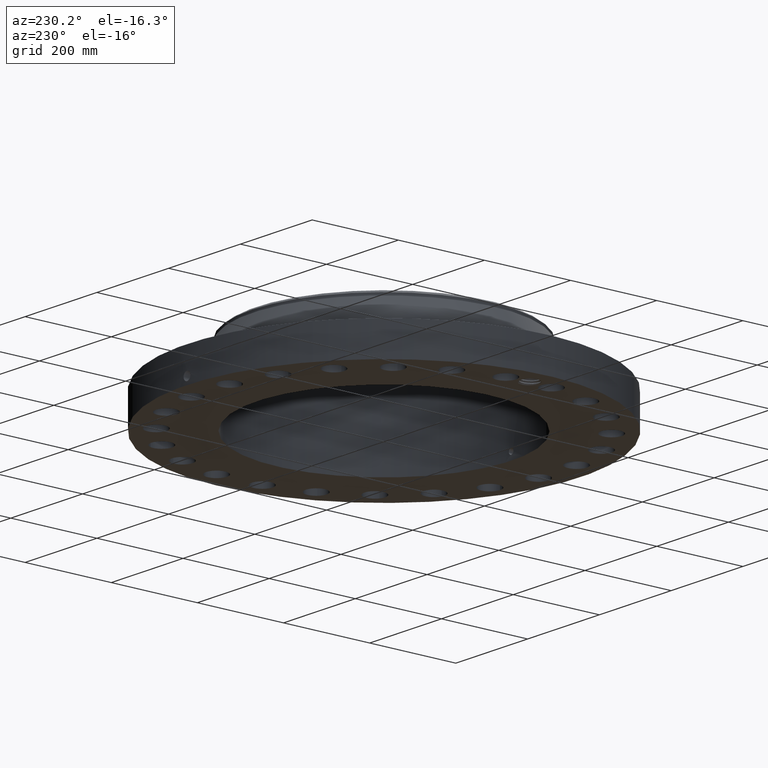
[diagram: clean part render]
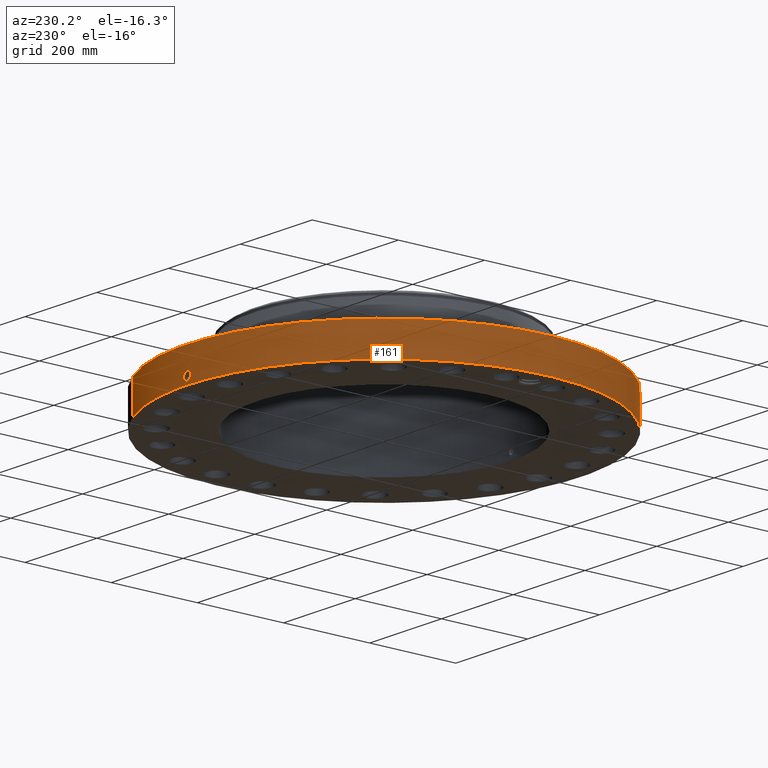
[diagram: same view with one face highlighted and labeled with its STEP entity id]
A machine part, auxiliary view. The second image highlights one B-rep face of the part: STEP entity #161.
In plain terms, the highlighted cylindrical surface (partial cylindrical patch) has radius 457.2 mm, axis along (0, 0, -1).
Its self-contained STEP definition (entity closure, byte-faithful):
#38=AXIS2_PLACEMENT_3D('Cylinder Axis2P3D',#35,#36,#37) ;
#42=AXIS2_PLACEMENT_3D('Circle Axis2P3D',#40,#41,$) ;
#58=AXIS2_PLACEMENT_3D('Circle Axis2P3D',#56,#57,$) ;
#35=CARTESIAN_POINT('Axis2P3D Location',(0.,0.,3.69000000001)) ;
#40=CARTESIAN_POINT('Axis2P3D Location',(0.,0.,0.250000000001)) ;
#44=CARTESIAN_POINT('Vertex',(-8.62965969491,-15.7964861141,0.250000000001)) ;
#46=CARTESIAN_POINT('Vertex',(8.62965969491,15.7964861141,0.250000000001)) ;
#49=CARTESIAN_POINT('Line Origine',(-8.62965969491,-15.7964861141,1.75000000001)) ;
#53=CARTESIAN_POINT('Vertex',(-8.62965969491,-15.7964861141,3.25000000001)) ;
#56=CARTESIAN_POINT('Axis2P3D Location',(0.,0.,3.25000000001)) ;
#60=CARTESIAN_POINT('Vertex',(8.62965969491,15.7964861141,3.25000000001)) ;
#63=CARTESIAN_POINT('Line Origine',(8.62965969491,15.7964861141,1.75000000001)) ;
#75=CARTESIAN_POINT('Control Point',(-0.000715916273797,17.9999999858,1.29411846164)) ;
#76=CARTESIAN_POINT('Control Point',(-0.0187947670169,17.9999992668,1.29408195945)) ;
#77=CARTESIAN_POINT('Control Point',(-0.0368704907879,17.9999710998,1.29265734614)) ;
#78=CARTESIAN_POINT('Control Point',(-0.054731662836,17.99991679,1.28986144223)) ;
#79=CARTESIAN_POINT('Vertex',(-0.000715617286584,17.9999999858,1.2941185108)) ;
#81=CARTESIAN_POINT('Vertex',(-0.054723070488,17.9999170677,1.28986280481)) ;
#85=CARTESIAN_POINT('Control Point',(-0.0547229766331,17.9999168164,1.28986226213)) ;
#86=CARTESIAN_POINT('Control Point',(-0.0953738332019,17.9997932305,1.28552531456)) ;
#87=CARTESIAN_POINT('Control Point',(-0.135409945992,17.9995285052,1.27380449254)) ;
#88=CARTESIAN_POINT('Control Point',(-0.172317078189,17.9991751707,1.25545477223)) ;
#89=CARTESIAN_POINT('Vertex',(-0.172317078189,17.9991751707,1.25545477223)) ;
#93=CARTESIAN_POINT('Control Point',(-0.0311785035352,17.9999729973,0.531201562891)) ;
#94=CARTESIAN_POINT('Control Point',(-0.0718024994835,17.9999026308,0.536338161164)) ;
#95=CARTESIAN_POINT('Control Point',(-0.111634499031,17.9997190308,0.546728855768)) ;
#96=CARTESIAN_POINT('Control Point',(-0.149741617249,17.9994324956,0.562218507289)) ;
#97=CARTESIAN_POINT('Control Point',(-0.239620396413,17.9985293262,0.613169843026)) ;
#98=CARTESIAN_POINT('Control Point',(-0.308806249484,17.9974126624,0.690006161397)) ;
#99=CARTESIAN_POINT('Control Point',(-0.340722284397,17.9967939004,0.743754792639)) ;
#100=CARTESIAN_POINT('Control Point',(-0.375373751697,17.9960901162,0.841059821639)) ;
#101=CARTESIAN_POINT('Control Point',(-0.377750076791,17.9960345675,0.942362779085)) ;
#102=CARTESIAN_POINT('Control Point',(-0.373383149171,17.9961284653,0.982905031362)) ;
#103=CARTESIAN_POINT('Control Point',(-0.350799748719,17.9966011635,1.07574548388)) ;
#104=CARTESIAN_POINT('Control Point',(-0.300979187962,17.9975215948,1.15733410869)) ;
#105=CARTESIAN_POINT('Control Point',(-0.264028464089,17.9981368944,1.19844198086)) ;
#106=CARTESIAN_POINT('Control Point',(-0.220353851539,17.9987152854,1.23157154256)) ;
#107=CARTESIAN_POINT('Control Point',(-0.172317078189,17.9991751707,1.25545477223)) ;
#108=CARTESIAN_POINT('Vertex',(-0.0311785035352,17.9999729973,0.531201562891)) ;
#112=CARTESIAN_POINT('Control Point',(-0.0311785035352,17.9999729973,0.531201562891)) ;
#113=CARTESIAN_POINT('Control Point',(-0.0207810348001,17.9999910072,0.530876353489)) ;
#114=CARTESIAN_POINT('Control Point',(-0.0103754059313,18.0000000016,0.5309342353)) ;
#115=CARTESIAN_POINT('Control Point',(2.7287835594E-006,18.0000000001,0.531374667806)) ;
#116=CARTESIAN_POINT('Vertex',(2.72878354411E-006,18.0000000001,0.531374667806)) ;
#120=CARTESIAN_POINT('Control Point',(0.192490992805,17.9989707267,0.587658904988)) ;
#121=CARTESIAN_POINT('Control Point',(0.148953542664,17.9994363404,0.56218495783)) ;
#122=CARTESIAN_POINT('Control Point',(0.101107482151,17.9998082664,0.543830382576)) ;
#123=CARTESIAN_POINT('Control Point',(0.0508027302404,17.9999999924,0.533530543735)) ;
#124=CARTESIAN_POINT('Control Point',(2.72878359139E-006,18.0000000001,0.531374667806)) ;
#125=CARTESIAN_POINT('Vertex',(0.192490992805,17.9989707267,0.587658904988)) ;
#129=CARTESIAN_POINT('Control Point',(0.192490992805,17.9989707267,0.587658904988)) ;
#130=CARTESIAN_POINT('Control Point',(0.249225140609,17.9983639802,0.620854295766)) ;
#131=CARTESIAN_POINT('Control Point',(0.299118627325,17.9976068279,0.66538262187)) ;
#132=CARTESIAN_POINT('Control Point',(0.339016736008,17.9968404577,0.719620461629)) ;
#133=CARTESIAN_POINT('Control Point',(0.382904584904,17.9959349998,0.817936937228)) ;
#134=CARTESIAN_POINT('Control Point',(0.391223224526,17.9957468042,0.923210606048)) ;
#135=CARTESIAN_POINT('Control Point',(0.389017375915,17.9957960737,0.963428947407)) ;
#136=CARTESIAN_POINT('Control Point',(0.369349141373,17.9962276358,1.06643517038)) ;
#137=CARTESIAN_POINT('Control Point',(0.315771155186,17.9972806993,1.15717933677)) ;
#138=CARTESIAN_POINT('Control Point',(0.271217966878,17.9980645582,1.2047921397)) ;
#139=CARTESIAN_POINT('Control Point',(0.19042715622,17.9991387671,1.26072522643)) ;
#140=CARTESIAN_POINT('Control Point',(0.0985097274537,17.9997740421,1.28789388359)) ;
#141=CARTESIAN_POINT('Control Point',(0.0657534719542,17.9999256067,1.29368529426)) ;
#142=CARTESIAN_POINT('Control Point',(0.0327250899225,18.0000000471,1.29575873174)) ;
#143=CARTESIAN_POINT('Control Point',(-2.58579355446E-005,18.0000000001,1.29415298429)) ;
#144=CARTESIAN_POINT('Vertex',(-2.58579355513E-005,18.0000000001,1.29415298429)) ;
#148=CARTESIAN_POINT('Control Point',(-0.000715617277151,17.9999999858,1.29411851078)) ;
#149=CARTESIAN_POINT('Control Point',(-0.000370762243332,17.9999999996,1.29413607398)) ;
#150=CARTESIAN_POINT('Control Point',(-2.58579404475E-005,18.0000000001,1.29415298429)) ;
#36=DIRECTION('Axis2P3D Direction',(0.,0.,-0.0393700787402)) ;
#37=DIRECTION('Axis2P3D XDirection',(0.0188750212049,0.0345504945626,0.)) ;
#41=DIRECTION('Axis2P3D Direction',(0.,0.,-0.0393700787402)) ;
#50=DIRECTION('Vector Direction',(0.,0.,-0.0393700787402)) ;
#57=DIRECTION('Axis2P3D Direction',(0.,0.,-0.0393700787402)) ;
#64=DIRECTION('Vector Direction',(0.,0.,-0.0393700787402)) ;
#51=VECTOR('Line Direction',#50,0.0393700787402) ;
#65=VECTOR('Line Direction',#64,0.0393700787402) ;
#69=ORIENTED_EDGE('',*,*,#48,.F.) ;
#70=ORIENTED_EDGE('',*,*,#55,.T.) ;
#71=ORIENTED_EDGE('',*,*,#62,.T.) ;
#72=ORIENTED_EDGE('',*,*,#67,.F.) ;
#153=ORIENTED_EDGE('',*,*,#83,.T.) ;
#154=ORIENTED_EDGE('',*,*,#91,.T.) ;
#155=ORIENTED_EDGE('',*,*,#110,.F.) ;
#156=ORIENTED_EDGE('',*,*,#118,.T.) ;
#157=ORIENTED_EDGE('',*,*,#127,.F.) ;
#158=ORIENTED_EDGE('',*,*,#146,.T.) ;
#159=ORIENTED_EDGE('',*,*,#151,.F.) ;
#160=FACE_BOUND('',#152,.T.) ;
#161=ADVANCED_FACE('PartBody',(#73,#160),#39,.T.) ;
#74=B_SPLINE_CURVE_WITH_KNOTS('',3,(#75,#76,#77,#78),.UNSPECIFIED.,.F.,.U.,(4,4),(34.6167849959,36.6224614503),.UNSPECIFIED.) ;
#84=B_SPLINE_CURVE_WITH_KNOTS('',3,(#85,#86,#87,#88),.UNSPECIFIED.,.F.,.U.,(4,4),(0.,4.59363155509),.UNSPECIFIED.) ;
#92=B_SPLINE_CURVE_WITH_KNOTS('',5,(#93,#94,#95,#96,#97,#98,#99,#100,#101,#102,#103,#104,#105,#106,#107),.UNSPECIFIED.,.F.,.U.,(6,3,3,3,6),(0.,7.11615119109,18.0025199651,25.3409690946,35.3057659836),.UNSPECIFIED.) ;
#111=B_SPLINE_CURVE_WITH_KNOTS('',3,(#112,#113,#114,#115),.UNSPECIFIED.,.F.,.U.,(4,4),(0.,1.08463646199),.UNSPECIFIED.) ;
#119=B_SPLINE_CURVE_WITH_KNOTS('',4,(#120,#121,#122,#123,#124),.UNSPECIFIED.,.F.,.U.,(5,5),(0.,7.0789257542),.UNSPECIFIED.) ;
#128=B_SPLINE_CURVE_WITH_KNOTS('',5,(#129,#130,#131,#132,#133,#134,#135,#136,#137,#138,#139,#140,#141,#142,#143),.UNSPECIFIED.,.F.,.U.,(6,3,3,3,6),(0.,11.5307860742,18.6312315392,30.1312120299,36.253044085),.UNSPECIFIED.) ;
#147=B_SPLINE_CURVE_WITH_KNOTS('',2,(#148,#149,#150),.UNSPECIFIED.,.F.,.U.,(3,3),(1.01704989143,1.04283780222),.UNSPECIFIED.) ;
#43=CIRCLE('generated circle',#42,18.0000000001) ;
#59=CIRCLE('generated circle',#58,18.0000000001) ;
#39=CYLINDRICAL_SURFACE('generated cylinder',#38,18.0000000001) ;
#48=EDGE_CURVE('',#45,#47,#43,.T.) ;
#55=EDGE_CURVE('',#45,#54,#52,.F.) ;
#62=EDGE_CURVE('',#54,#61,#59,.T.) ;
#67=EDGE_CURVE('',#47,#61,#66,.F.) ;
#83=EDGE_CURVE('',#80,#82,#74,.T.) ;
#91=EDGE_CURVE('',#82,#90,#84,.T.) ;
#110=EDGE_CURVE('',#109,#90,#92,.T.) ;
#118=EDGE_CURVE('',#109,#117,#111,.T.) ;
#127=EDGE_CURVE('',#126,#117,#119,.T.) ;
#146=EDGE_CURVE('',#126,#145,#128,.T.) ;
#151=EDGE_CURVE('',#80,#145,#147,.T.) ;
#68=EDGE_LOOP('',(#69,#70,#71,#72)) ;
#152=EDGE_LOOP('',(#153,#154,#155,#156,#157,#158,#159)) ;
#73=FACE_OUTER_BOUND('',#68,.T.) ;
#52=LINE('Line',#49,#51) ;
#66=LINE('Line',#63,#65) ;
#45=VERTEX_POINT('',#44) ;
#47=VERTEX_POINT('',#46) ;
#54=VERTEX_POINT('',#53) ;
#61=VERTEX_POINT('',#60) ;
#80=VERTEX_POINT('',#79) ;
#82=VERTEX_POINT('',#81) ;
#90=VERTEX_POINT('',#89) ;
#109=VERTEX_POINT('',#108) ;
#117=VERTEX_POINT('',#116) ;
#126=VERTEX_POINT('',#125) ;
#145=VERTEX_POINT('',#144) ;